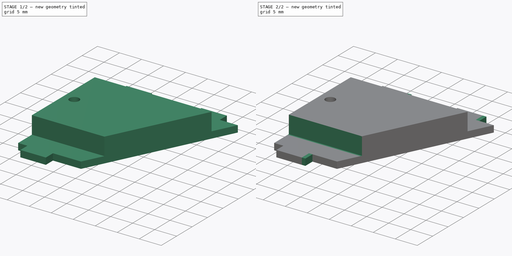
[diagram: build sequence overview — one tinted view per stage of 2, left to right]
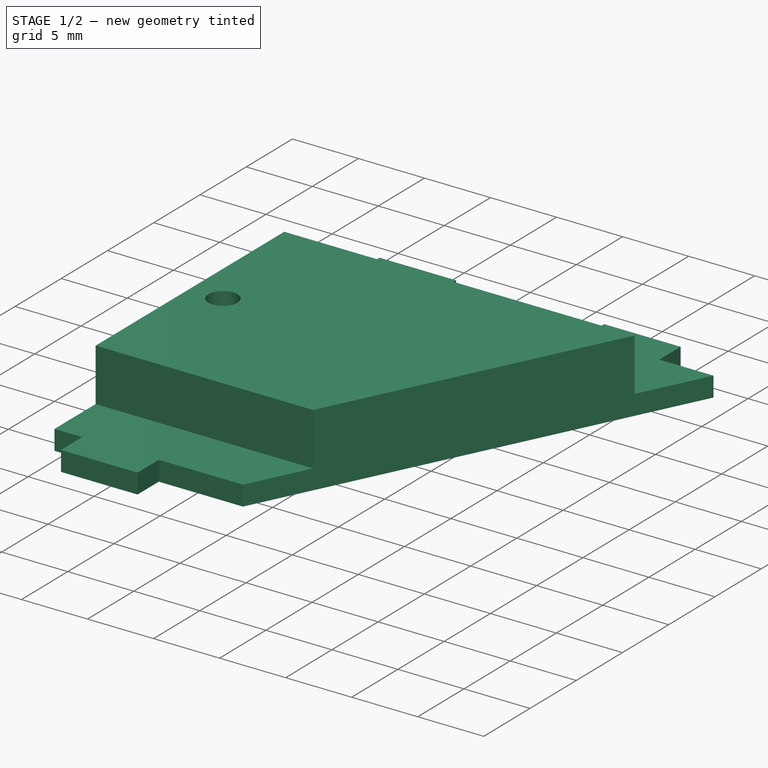
[diagram: stage 1 of 2 — iso view after this stage's code; geometry added in this stage tinted green]
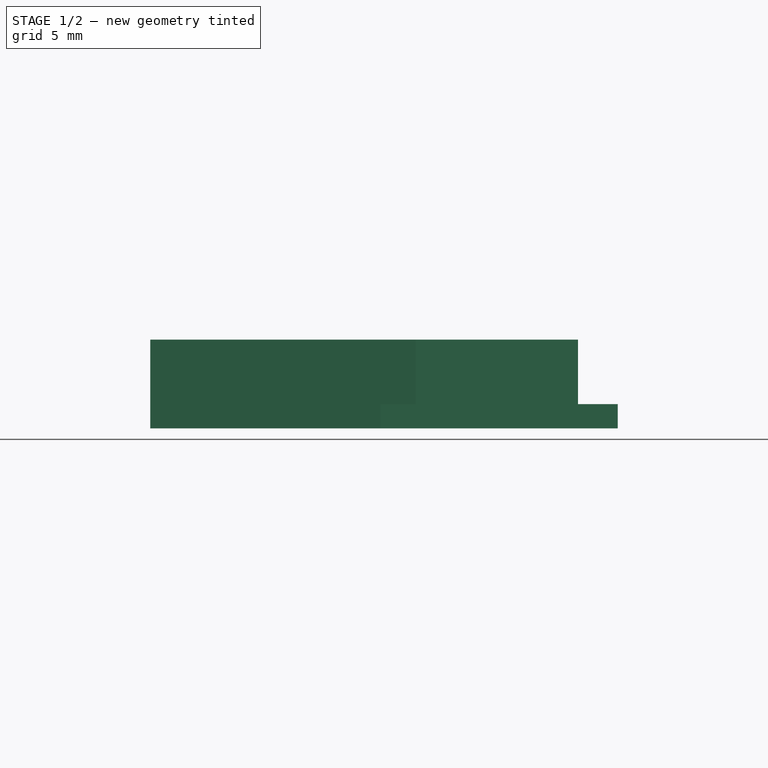
[diagram: stage 1 of 2 — front view after this stage's code; geometry added in this stage tinted green]
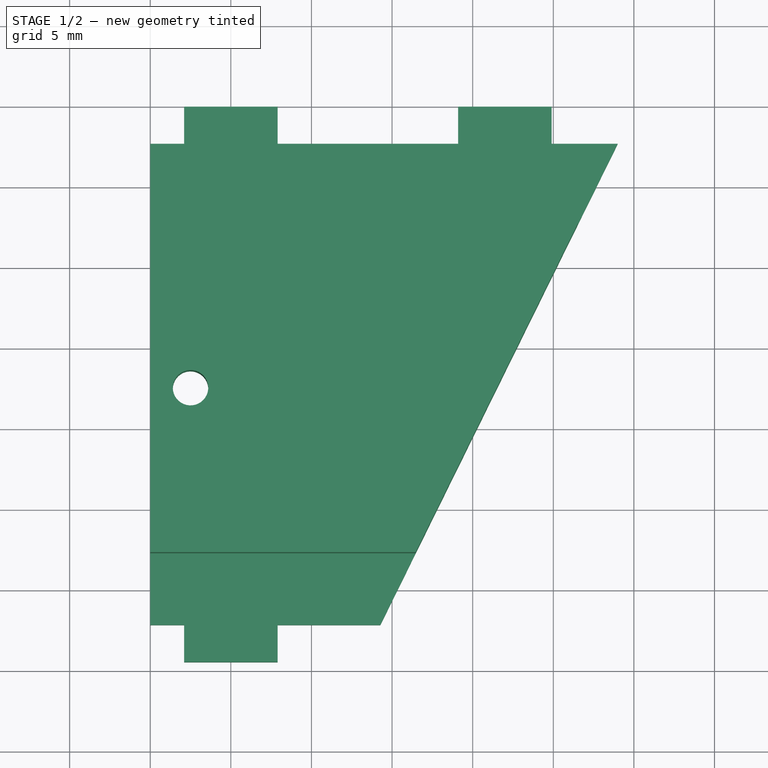
[diagram: stage 1 of 2 — top view after this stage's code; geometry added in this stage tinted green]
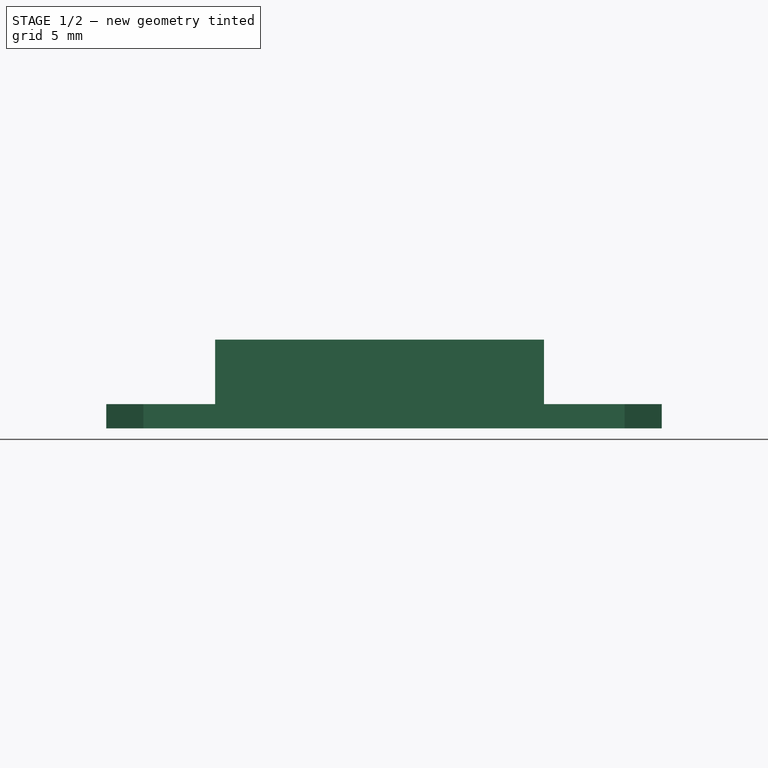
[diagram: stage 1 of 2 — right view after this stage's code; geometry added in this stage tinted green]
FCSTD DOCUMENT  (FreeCAD 0.20R29603 (Git))
Label: CamHolder
License: All rights reserved
LicenseURL: http://en.wikipedia.org/wiki/All_rights_reserved
objects: Sketcher::SketchObject×3, PartDesign::Pocket×2, Part::Feature×1, PartDesign::FeatureBase×1, PartDesign::Pad×1, PartDesign::Body×1
note: 12 computed .brp shape members not serialized (recipe doc carries the construction recipe); baked Part::Feature solids carry a one-line shape summary decoded from their .brp

FEATURE [Part::Feature] Part2001_solid  label="Part2001 (Solid)"
  shape: bbox 29 x 35 x 5.5 mm, 230 faces (baked)
FEATURE [PartDesign::FeatureBase] BaseFeature
  BaseFeature = -> Part2001_solid
FEATURE [Sketcher::SketchObject] Sketch
  FullyConstrained = true
  MapMode = 5
  Placement = pos=(0,0,0) rot=(1,0,0;3.14159rad)
  Support = -> [BaseFeature]
  sketch-geometry (8):
    g0: LineSegment StartX=0 StartY=0 StartZ=0 EndX=0 EndY=-2.85 EndZ=0
    g1: LineSegment StartX=0 StartY=-2.85 StartZ=0 EndX=2.1 EndY=-2.85 EndZ=0
    g2: LineSegment StartX=2.1 StartY=-2.85 StartZ=0 EndX=2.1 EndY=-0.55 EndZ=0
    g3: LineSegment StartX=2.1 StartY=-0.55 StartZ=0 EndX=7.9 EndY=-0.55 EndZ=0
    g4: LineSegment StartX=7.9 StartY=-0.55 StartZ=0 EndX=7.9 EndY=-2.85 EndZ=0
    g5: LineSegment StartX=7.9 StartY=-2.85 StartZ=0 EndX=16.75 EndY=-2.85 EndZ=0
    g6: LineSegment StartX=16.75 StartY=-2.85 StartZ=0 EndX=16.75 EndY=0 EndZ=0
    g7: LineSegment StartX=16.75 StartY=0 StartZ=0 EndX=0 EndY=0 EndZ=0
  constraints (23):
    c: Coincident(g0,g-1)
    c: PointOnObject(g0,g-2)
    c: Coincident(g1,g0)
    c: Horizontal(g1)
    c: Coincident(g2,g1)
    c: Vertical(g2)
    c: Coincident(g3,g2)
    c: Horizontal(g3)
    c: Coincident(g4,g3)
    c: Vertical(g4)
    c: Coincident(g5,g4)
    c: Horizontal(g5)
    c: Coincident(g6,g5)
    c: PointOnObject(g6,g-1)
    c: Vertical(g6)
    c: Coincident(g7,g6)
    c: Coincident(g7,g0)
    c: DistanceY(g2,g0) = 0.55
    c: DistanceY(g0,g0) = 2.85
    c: DistanceY(g4,g0) = 2.85
    c: DistanceX(g0,g2) = 2.1
    c: DistanceX(g3,g3) = 5.8
    c: DistanceX(g5,g5) = 8.85
FEATURE [PartDesign::Pocket] Pocket
  BaseFeature = -> BaseFeature
  Direction = (0,0,1)
  Length = 5
  Length2 = 5
  Profile = -> Sketch
  ReferenceAxis = -> Sketch [N_Axis]
  Type = 0
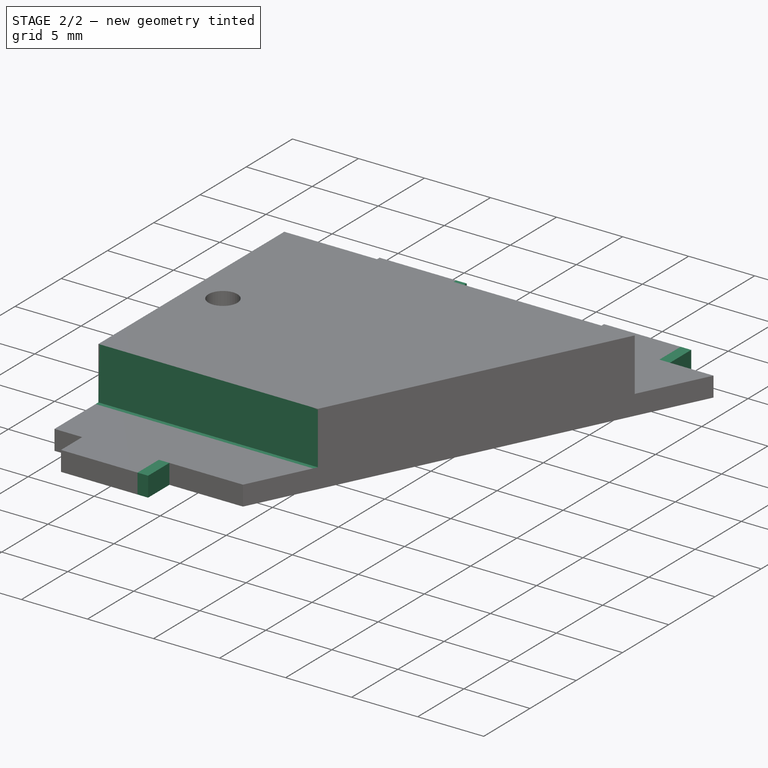
[diagram: stage 2 of 2 — iso view after this stage's code; geometry added in this stage tinted green]
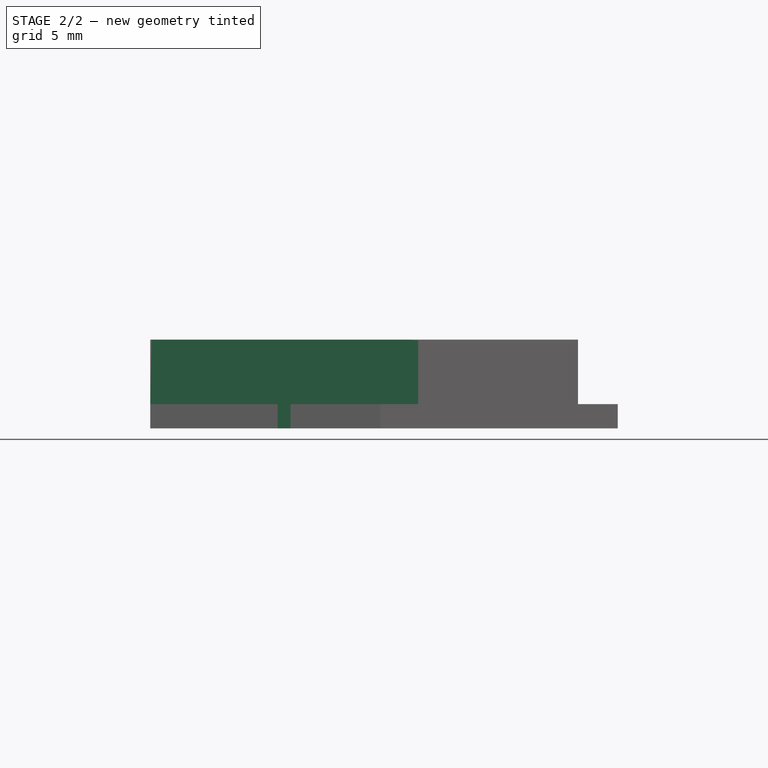
[diagram: stage 2 of 2 — front view after this stage's code; geometry added in this stage tinted green]
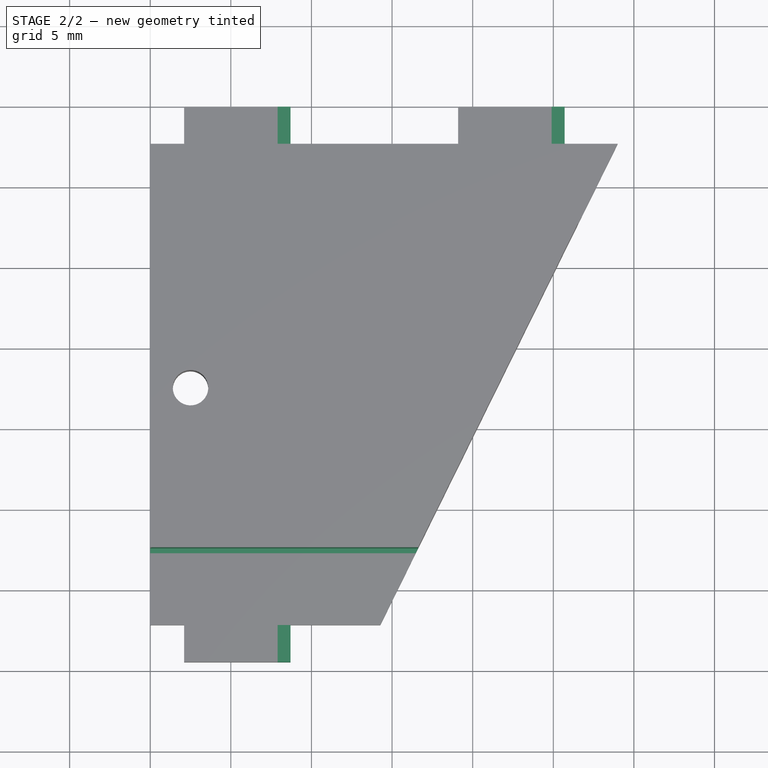
[diagram: stage 2 of 2 — top view after this stage's code; geometry added in this stage tinted green]
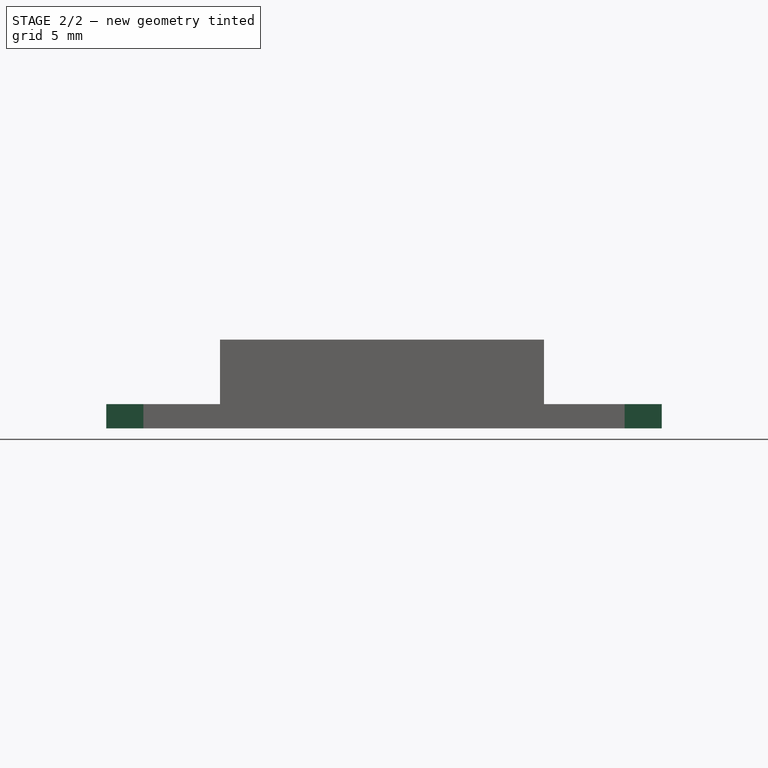
[diagram: stage 2 of 2 — right view after this stage's code; geometry added in this stage tinted green]
FEATURE [Sketcher::SketchObject] Sketch001
  FullyConstrained = true
  MapMode = 5
  Placement = pos=(0,0,5.5) rot=(0,0,1;0rad)
  Support = -> [Pocket]
  sketch-geometry (4):
    g0: LineSegment StartX=0 StartY=7.2 StartZ=0 EndX=20.27 EndY=7.2 EndZ=0
    g1: LineSegment StartX=20.27 StartY=7.2 StartZ=0 EndX=20.27 EndY=7.6 EndZ=0
    g2: LineSegment StartX=20.27 StartY=7.6 StartZ=0 EndX=0 EndY=7.6 EndZ=0
    g3: LineSegment StartX=0 StartY=7.6 StartZ=0 EndX=0 EndY=7.2 EndZ=0
  constraints (12):
    c: Coincident(g0,g1)
    c: Coincident(g1,g2)
    c: Coincident(g2,g3)
    c: Coincident(g3,g0)
    c: Horizontal(g0)
    c: Horizontal(g2)
    c: Vertical(g1)
    c: Vertical(g3)
    c: PointOnObject(g0,g-2)
    c: DistanceY(g-1,g0) = 7.2
    c: DistanceY(g-1,g2) = 7.6
    c: DistanceX(g2,g2) = 20.27
FEATURE [PartDesign::Pocket] Pocket001
  BaseFeature = -> Pocket
  Direction = (0,0,-1)
  Length = 4
  Length2 = 5
  Profile = -> Sketch001
  ReferenceAxis = -> Sketch001 [N_Axis]
  Type = 0
FEATURE [Sketcher::SketchObject] Sketch002
  FullyConstrained = true
  MapMode = 5
  Placement = pos=(0,0,1.5) rot=(0,0,1;0rad)
  Support = -> [Pocket001]
  sketch-geometry (12):
    g0: LineSegment StartX=6.66 StartY=0.55 StartZ=0 EndX=8.7 EndY=0.55 EndZ=0
    g1: LineSegment StartX=8.7 StartY=0.55 StartZ=0 EndX=8.7 EndY=3.05 EndZ=0
    g2: LineSegment StartX=8.7 StartY=3.05 StartZ=0 EndX=6.66 EndY=3.05 EndZ=0
    g3: LineSegment StartX=6.66 StartY=3.05 StartZ=0 EndX=6.66 EndY=0.55 EndZ=0
    g4: LineSegment StartX=6.75 StartY=35 StartZ=0 EndX=8.7 EndY=35 EndZ=0
    g5: LineSegment StartX=8.7 StartY=35 StartZ=0 EndX=8.7 EndY=32 EndZ=0
    g6: LineSegment StartX=8.7 StartY=32 StartZ=0 EndX=6.75 EndY=32 EndZ=0
    g7: LineSegment StartX=6.75 StartY=32 StartZ=0 EndX=6.75 EndY=35 EndZ=0
    g8: LineSegment StartX=24.1 StartY=35 StartZ=0 EndX=25.7 EndY=35 EndZ=0
    g9: LineSegment StartX=25.7 StartY=35 StartZ=0 EndX=25.7 EndY=32.54 EndZ=0
    g10: LineSegment StartX=25.7 StartY=32.54 StartZ=0 EndX=24.1 EndY=32.54 EndZ=0
    g11: LineSegment StartX=24.1 StartY=32.54 StartZ=0 EndX=24.1 EndY=35 EndZ=0
  constraints (36):
    c: Coincident(g0,g1)
    c: Coincident(g1,g2)
    c: Coincident(g2,g3)
    c: Coincident(g3,g0)
    c: Horizontal(g0)
    c: Horizontal(g2)
    c: Vertical(g1)
    c: Vertical(g3)
    c: Coincident(g4,g5)
    c: Coincident(g5,g6)
    c: Coincident(g6,g7)
    c: Coincident(g7,g4)
    c: Horizontal(g4)
    c: Horizontal(g6)
    c: Vertical(g5)
    c: Vertical(g7)
    c: Coincident(g8,g9)
    c: Coincident(g9,g10)
    c: Coincident(g10,g11)
    c: Coincident(g11,g8)
    c: Horizontal(g8)
    c: Horizontal(g10)
    c: Vertical(g9)
    c: Vertical(g11)
    c: DistanceY(g-1,g0) = 0.55
    c: DistanceY(g3,g3) = 2.5
    c: DistanceY(g-1,g5) = 32
    c: DistanceY(g-1,g4) = 35
    c: DistanceY(g-1,g10) = 32.54
    c: DistanceY(g-1,g8) = 35
    c: DistanceX(g-1,g0) = 8.7
    c: DistanceX(g-1,g0) = 6.66
    c: DistanceX(g-1,g6) = 6.75
    c: DistanceX(g-1,g4) = 8.7
    c: DistanceX(g-1,g10) = 24.1
    c: DistanceX(g-1,g9) = 25.7
FEATURE [PartDesign::Pad] Pad
  BaseFeature = -> Pocket001
  Direction = (0,0,1)
  Length = 1.5
  Length2 = 10
  Profile = -> Sketch002
  ReferenceAxis = -> Sketch002 [N_Axis]
  Reversed = true
  Type = 0
FEATURE [PartDesign::Body] Body
  BaseFeature = -> Part2001_solid
  Group = -> [BaseFeature,Sketch,Pocket,Sketch001,Pocket001,Sketch002,Pad]
  Origin = -> Origin
  Tip = -> Pad
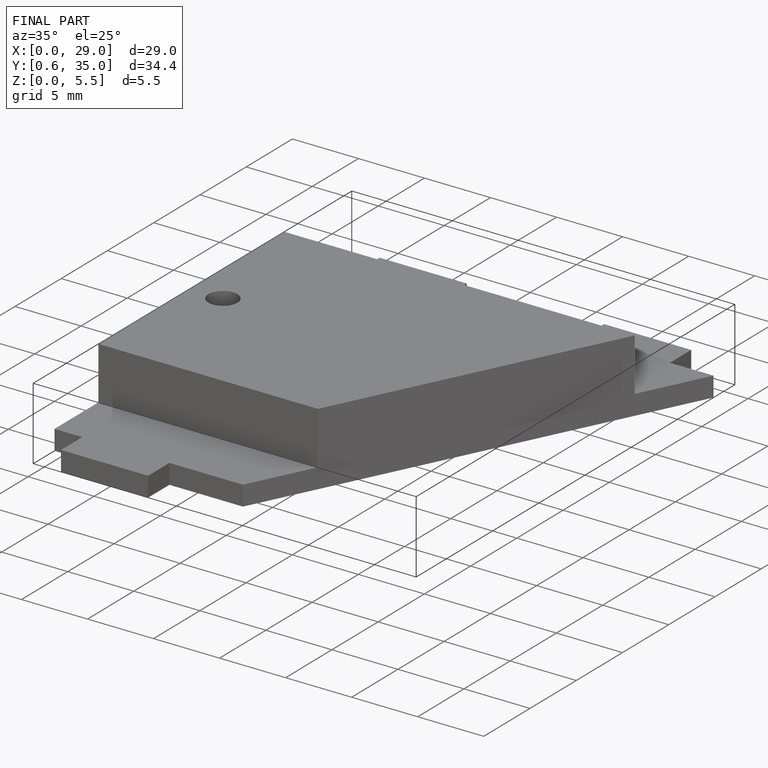
[diagram: finished part — iso view with bounding-box wireframe]
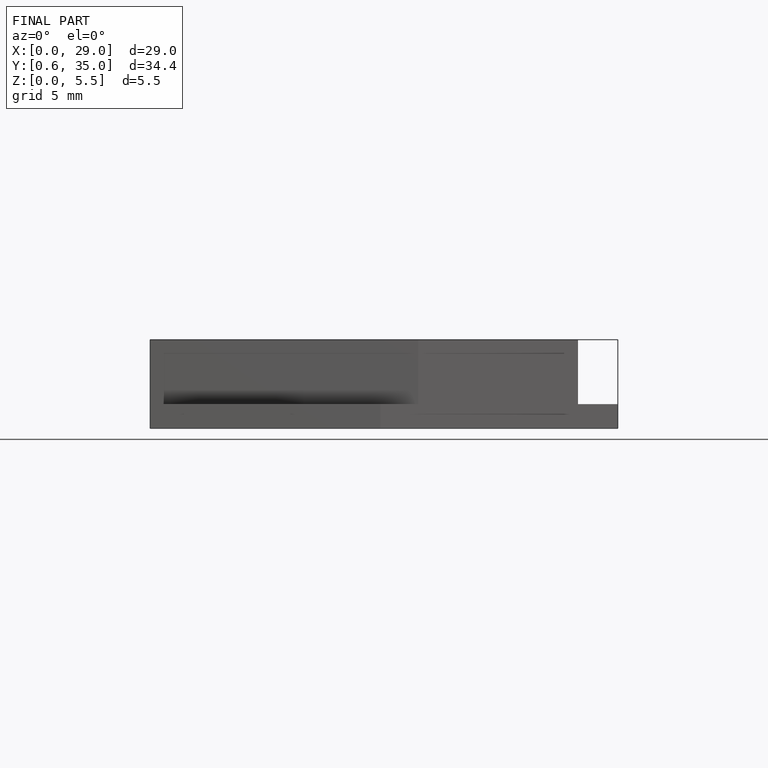
[diagram: finished part — front view with bounding-box wireframe]
